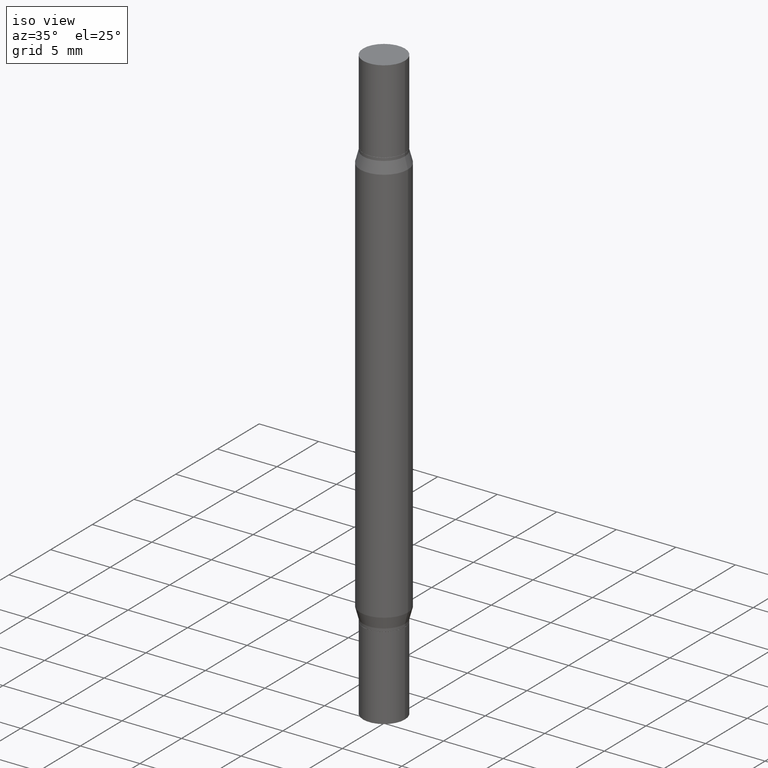
[diagram: clean part render]
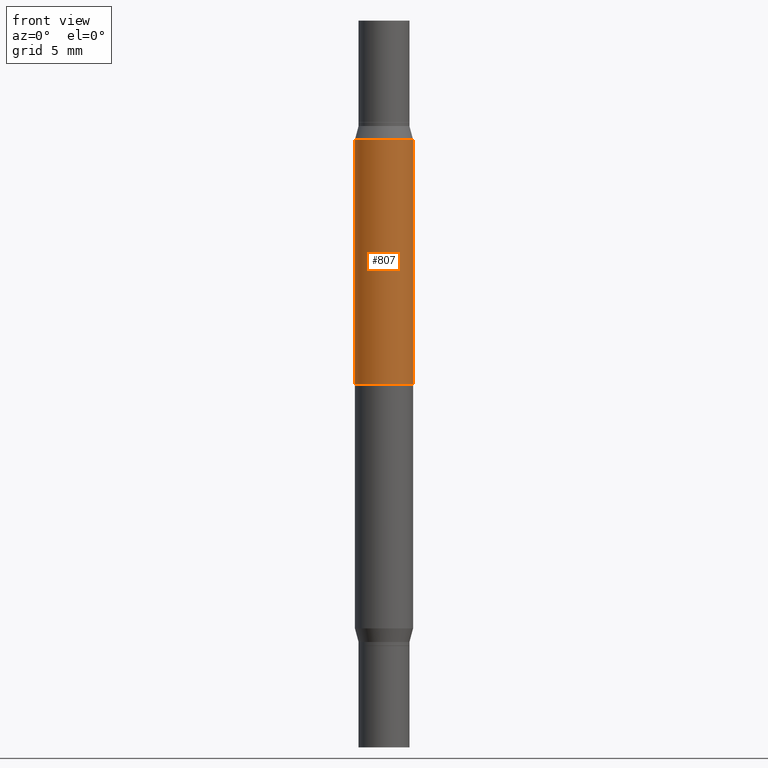
[diagram: tour spotlight — one face highlighted and labeled with its STEP entity id]
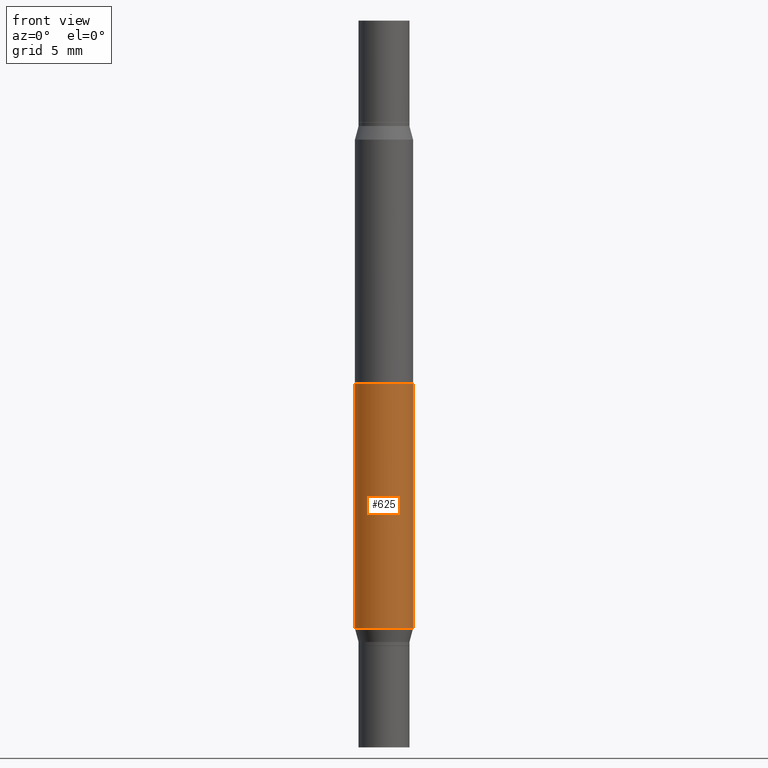
[diagram: tour spotlight — one face highlighted and labeled with its STEP entity id]
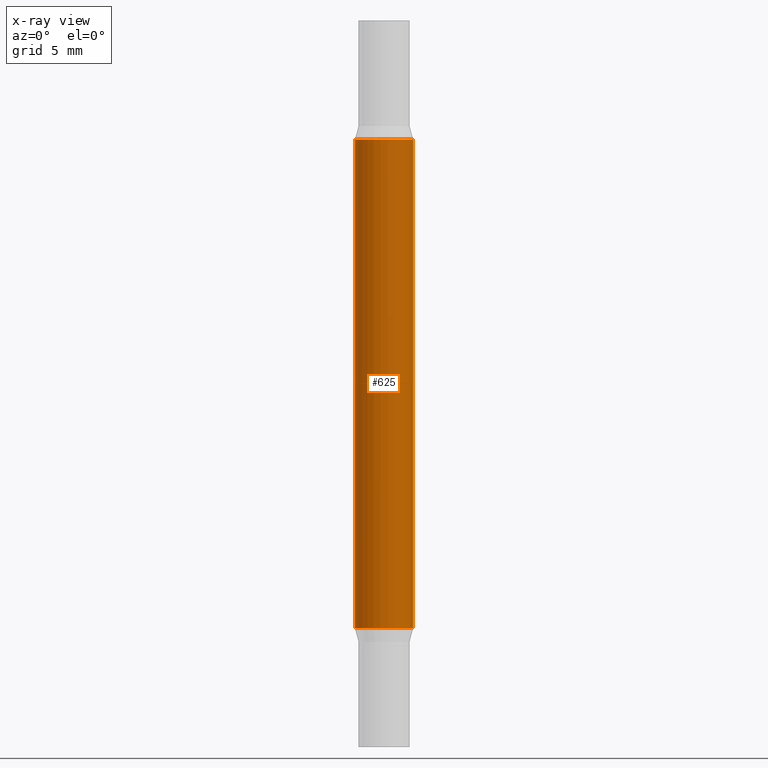
[diagram: x-ray of the same camera — body ghosted, this tour face saturated]
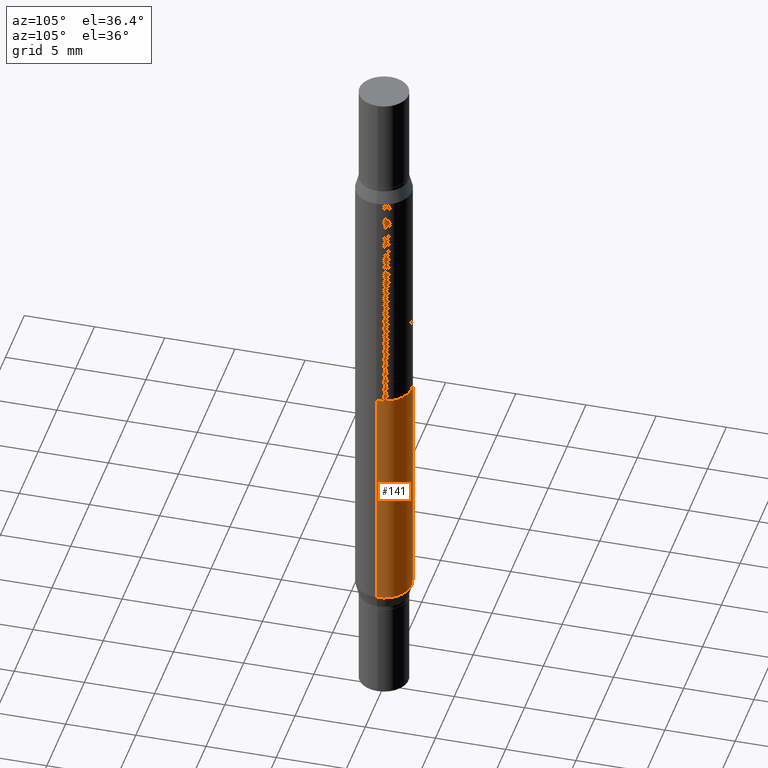
[diagram: tour spotlight — one face highlighted and labeled with its STEP entity id]
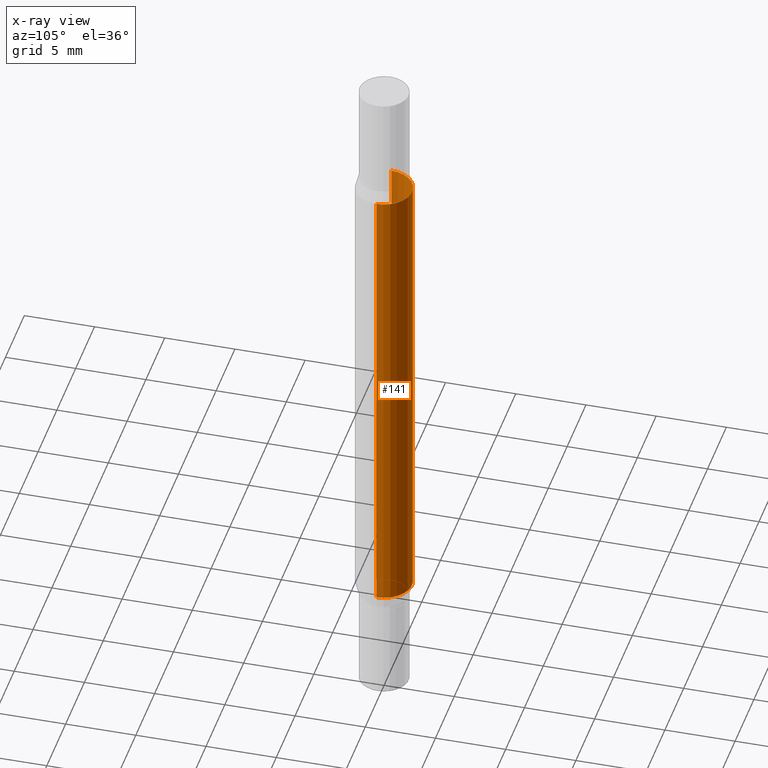
[diagram: x-ray of the same camera — body ghosted, this tour face saturated]
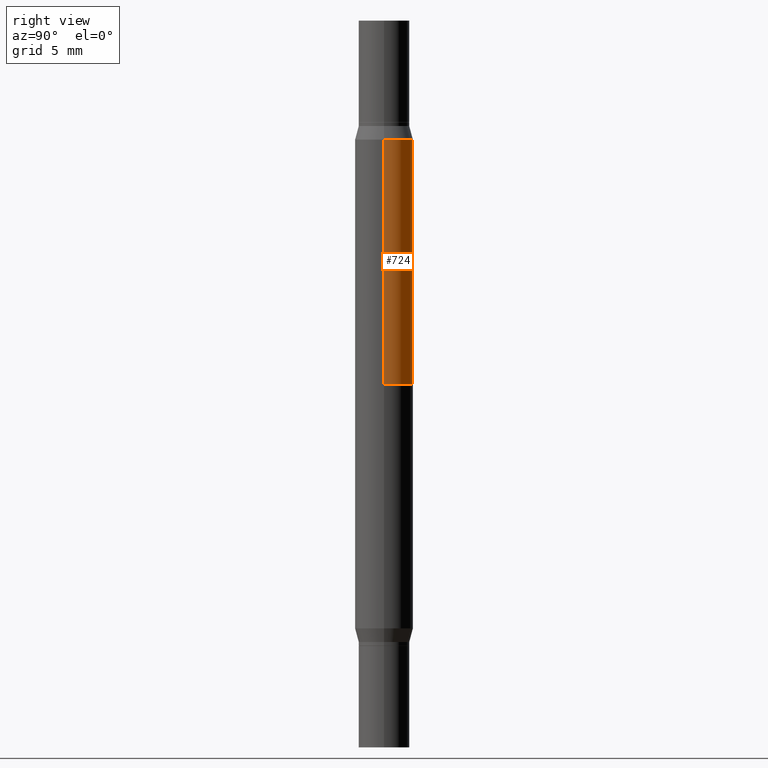
[diagram: tour spotlight — one face highlighted and labeled with its STEP entity id]
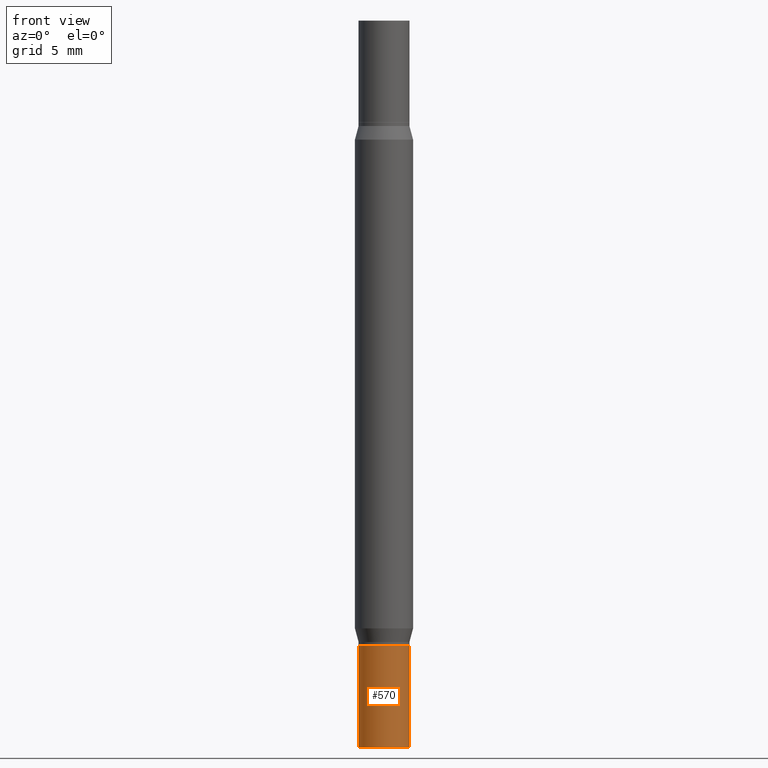
[diagram: tour spotlight — one face highlighted and labeled with its STEP entity id]
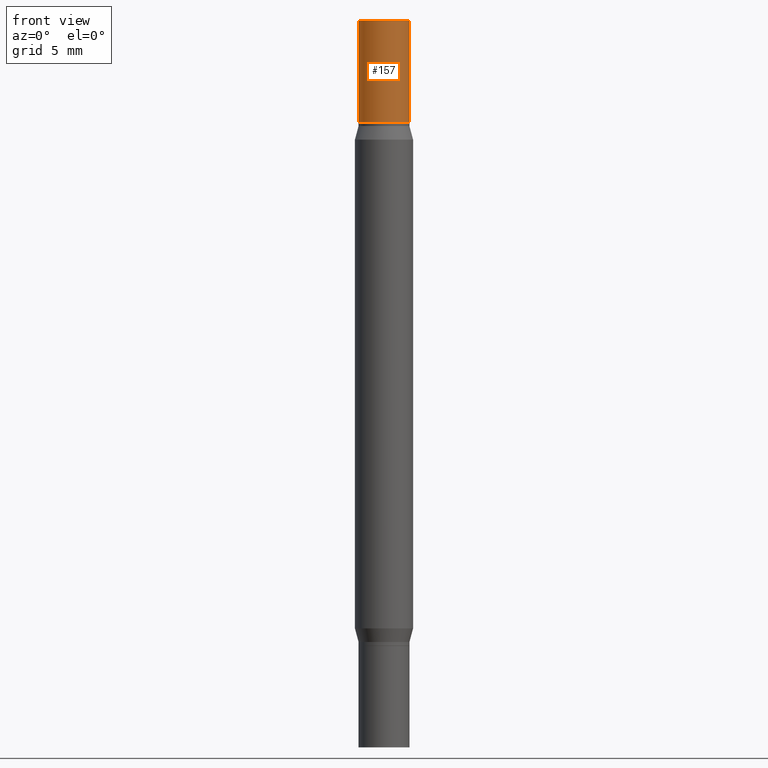
[diagram: tour spotlight — one face highlighted and labeled with its STEP entity id]
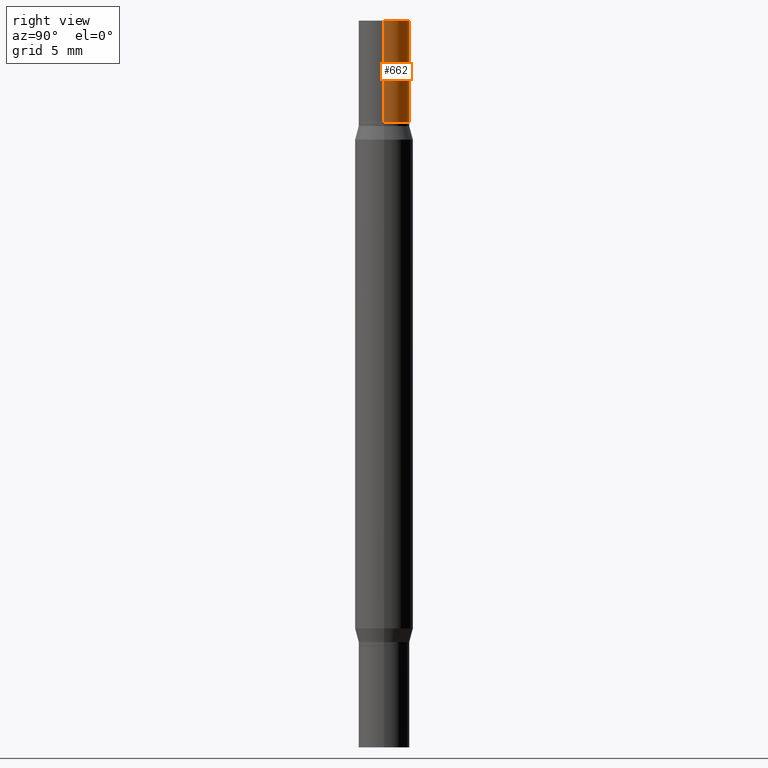
[diagram: tour spotlight — one face highlighted and labeled with its STEP entity id]
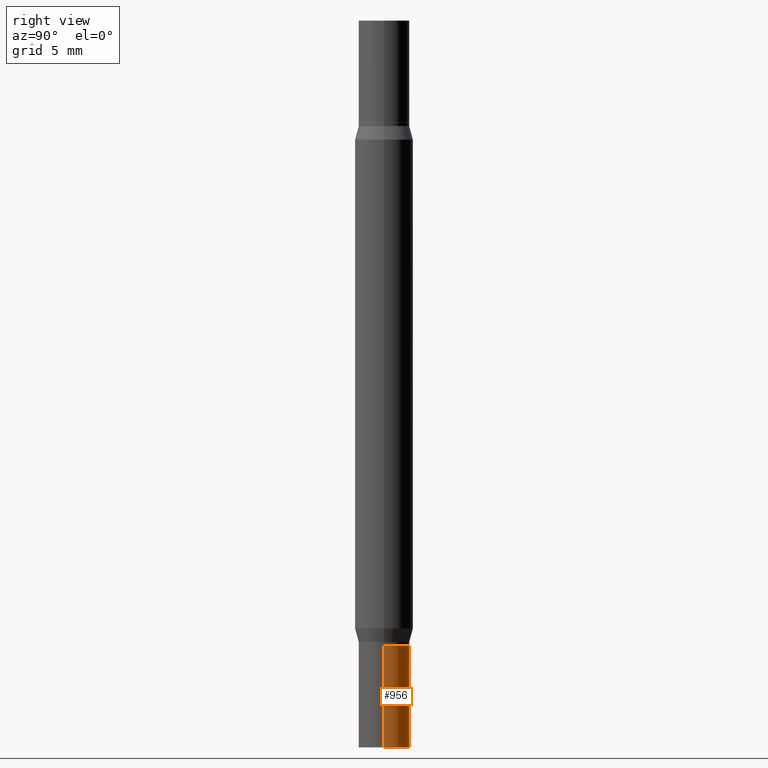
[diagram: tour spotlight — one face highlighted and labeled with its STEP entity id]
A machine part: a face-by-face anatomy tour. The part has 38 B-rep faces; the first image is the clean iso view, then the 8 largest visible faces are spotlighted one at a time (largest first), each with its STEP entity span.

Face 1 — front view, entity #807. In plain terms, the highlighted cylindrical surface (edge-blend (fillet) strip) has radius 2.0003 mm, axis along (-0, -0, -1).
Definition (entity closure, byte-faithful):
#22 = CIRCLE ( 'NONE', #407, 0.07875000000000001443 ) ;
#51 = EDGE_CURVE ( 'NONE', #605, #504, #960, .T. ) ;
#57 = CARTESIAN_POINT ( 'NONE',  ( 2.406952672487720357E-29, -3.436490507756365459E-15, -0.9842499999999998472 ) ) ;
#80 = AXIS2_PLACEMENT_3D ( 'NONE', #84, #391, #747 ) ;
#82 = EDGE_CURVE ( 'NONE', #605, #242, #558, .T. ) ;
#84 = CARTESIAN_POINT ( 'NONE',  ( 0.000000000000000000, -6.873299672471851415E-15, -1.968499999999999694 ) ) ;
#104 = CARTESIAN_POINT ( 'NONE',  ( 0.07875000000000001443, -1.675210390171119696E-15, -0.3223607004545533949 ) ) ;
#191 = DIRECTION ( 'NONE',  ( 1.000000000000000000, -6.982962677686267499E-15, 0.000000000000000000 ) ) ;
#237 = EDGE_CURVE ( 'NONE', #883, #242, #22, .T. ) ;
#240 = EDGE_CURVE ( 'NONE', #504, #883, #666, .T. ) ;
#242 = VERTEX_POINT ( 'NONE', #879 ) ;
#296 = CARTESIAN_POINT ( 'NONE',  ( -0.07875000000000001443, -5.850378619788178690E-16, -0.3223607004545533949 ) ) ;
#308 = ORIENTED_EDGE ( 'NONE', *, *, #51, .F. ) ;
#330 = ORIENTED_EDGE ( 'NONE', *, *, #237, .F. ) ;
#380 = CARTESIAN_POINT ( 'NONE',  ( 0.07875000000000001443, -7.423207983339645550E-15, -1.968499999999999694 ) ) ;
#391 = DIRECTION ( 'NONE',  ( -2.445468806185136597E-29, -3.491805094961124077E-15, -1.000000000000000000 ) ) ;
#406 = CARTESIAN_POINT ( 'NONE',  ( 4.025582307673839975E-29, -1.125302079303325561E-15, -0.3223607004545533949 ) ) ;
#407 = AXIS2_PLACEMENT_3D ( 'NONE', #57, #808, #975 ) ;
#430 = DIRECTION ( 'NONE',  ( 2.445468806185136597E-29, 3.491805094961124077E-15, 1.000000000000000000 ) ) ;
#433 = EDGE_LOOP ( 'NONE', ( #308, #767, #330, #871 ) ) ;
#446 = VECTOR ( 'NONE', #661, 39.37007874015748143 ) ;
#504 = VERTEX_POINT ( 'NONE', #104 ) ;
#519 = VECTOR ( 'NONE', #779, 39.37007874015748143 ) ;
#532 = AXIS2_PLACEMENT_3D ( 'NONE', #406, #430, #191 ) ;
#544 = CARTESIAN_POINT ( 'NONE',  ( 0.07875000000000001443, -2.830804604397638560E-15, -0.9842499999999998472 ) ) ;
#558 = LINE ( 'NONE', #864, #519 ) ;
#602 = CYLINDRICAL_SURFACE ( 'NONE', #80, 0.07875000000000001443 ) ;
#605 = VERTEX_POINT ( 'NONE', #296 ) ;
#661 = DIRECTION ( 'NONE',  ( -2.445468806185136877E-29, -3.491805094961123683E-15, -1.000000000000000000 ) ) ;
#666 = LINE ( 'NONE', #380, #446 ) ;
#747 = DIRECTION ( 'NONE',  ( 1.000000000000000000, -6.982962677686273810E-15, 0.000000000000000000 ) ) ;
#767 = ORIENTED_EDGE ( 'NONE', *, *, #82, .T. ) ;
#779 = DIRECTION ( 'NONE',  ( -2.445468806185136877E-29, -3.491805094961123683E-15, -1.000000000000000000 ) ) ;
#807 = ADVANCED_FACE ( 'NONE', ( #901 ), #602, .T. ) ;
#808 = DIRECTION ( 'NONE',  ( -0.000000000000000000, -3.491643216902134830E-15, -1.000000000000000000 ) ) ;
#864 = CARTESIAN_POINT ( 'NONE',  ( -0.07875000000000001443, -6.333035455147343525E-15, -1.968499999999999694 ) ) ;
#871 = ORIENTED_EDGE ( 'NONE', *, *, #240, .F. ) ;
#879 = CARTESIAN_POINT ( 'NONE',  ( -0.07875000000000001443, -1.740632076205336930E-15, -0.9842499999999998472 ) ) ;
#883 = VERTEX_POINT ( 'NONE', #544 ) ;
#901 = FACE_OUTER_BOUND ( 'NONE', #433, .T. ) ;
#960 = CIRCLE ( 'NONE', #532, 0.07875000000000001443 ) ;
#975 = DIRECTION ( 'NONE',  ( 0.000000000000000000, 1.000000000000000000, -3.469013325287952504E-15 ) ) ;

Face 2 — front view, entity #625. An x-ray twin of the same camera follows (body ghosted, this face saturated) — the face is partly hidden behind the body. In plain terms, the highlighted cylindrical surface (edge-blend (fillet) strip) has radius 2.0003 mm, axis along (-0, -0, -1).
Definition (entity closure, byte-faithful):
#7 = CARTESIAN_POINT ( 'NONE',  ( 0.07875000000000001443, -6.297372956367045729E-15, -1.646139299545446466 ) ) ;
#14 = ORIENTED_EDGE ( 'NONE', *, *, #546, .T. ) ;
#24 = VECTOR ( 'NONE', #685, 39.37007874015748143 ) ;
#29 = VERTEX_POINT ( 'NONE', #955 ) ;
#34 = ORIENTED_EDGE ( 'NONE', *, *, #401, .F. ) ;
#42 = DIRECTION ( 'NONE',  ( 1.000000000000000000, -6.982962677686261189E-15, 0.000000000000000000 ) ) ;
#74 = LINE ( 'NONE', #877, #926 ) ;
#143 = DIRECTION ( 'NONE',  ( -2.445468806185136597E-29, -3.491805094961124077E-15, -1.000000000000000000 ) ) ;
#154 = DIRECTION ( 'NONE',  ( 2.445468806185136597E-29, 3.491805094961124077E-15, 1.000000000000000000 ) ) ;
#172 = LINE ( 'NONE', #387, #24 ) ;
#189 = AXIS2_PLACEMENT_3D ( 'NONE', #696, #492, #42 ) ;
#211 = DIRECTION ( 'NONE',  ( 1.000000000000000000, -6.982962677686267499E-15, 0.000000000000000000 ) ) ;
#233 = CIRCLE ( 'NONE', #189, 0.07875000000000001443 ) ;
#267 = VERTEX_POINT ( 'NONE', #959 ) ;
#352 = CIRCLE ( 'NONE', #521, 0.07875000000000001443 ) ;
#370 = CARTESIAN_POINT ( 'NONE',  ( 0.000000000000000000, -6.873299672471851415E-15, -1.968499999999999694 ) ) ;
#373 = FACE_OUTER_BOUND ( 'NONE', #472, .T. ) ;
#387 = CARTESIAN_POINT ( 'NONE',  ( 0.07875000000000001443, -7.423207983339645550E-15, -1.968499999999999694 ) ) ;
#390 = VERTEX_POINT ( 'NONE', #7 ) ;
#401 = EDGE_CURVE ( 'NONE', #29, #390, #172, .T. ) ;
#451 = CYLINDRICAL_SURFACE ( 'NONE', #464, 0.07875000000000001443 ) ;
#464 = AXIS2_PLACEMENT_3D ( 'NONE', #370, #143, #743 ) ;
#472 = EDGE_LOOP ( 'NONE', ( #571, #727, #14, #34 ) ) ;
#492 = DIRECTION ( 'NONE',  ( -2.445468806185136597E-29, 3.491481338843145583E-15, 1.000000000000000000 ) ) ;
#521 = AXIS2_PLACEMENT_3D ( 'NONE', #818, #154, #211 ) ;
#546 = EDGE_CURVE ( 'NONE', #937, #390, #233, .T. ) ;
#571 = ORIENTED_EDGE ( 'NONE', *, *, #721, .F. ) ;
#625 = ADVANCED_FACE ( 'NONE', ( #373 ), #451, .T. ) ;
#643 = EDGE_CURVE ( 'NONE', #267, #937, #74, .T. ) ;
#646 = DIRECTION ( 'NONE',  ( -2.445468806185136877E-29, -3.491805094961123683E-15, -1.000000000000000000 ) ) ;
#685 = DIRECTION ( 'NONE',  ( -2.445468806185136877E-29, -3.491805094961123683E-15, -1.000000000000000000 ) ) ;
#696 = CARTESIAN_POINT ( 'NONE',  ( 4.025582307673839975E-29, -5.747464645499252384E-15, -1.646139299545446466 ) ) ;
#721 = EDGE_CURVE ( 'NONE', #267, #29, #352, .T. ) ;
#727 = ORIENTED_EDGE ( 'NONE', *, *, #643, .T. ) ;
#743 = DIRECTION ( 'NONE',  ( 1.000000000000000000, -6.982962677686273810E-15, 0.000000000000000000 ) ) ;
#753 = CARTESIAN_POINT ( 'NONE',  ( -0.07875000000000001443, -2.896226290431857964E-15, -1.646139299545446466 ) ) ;
#818 = CARTESIAN_POINT ( 'NONE',  ( 4.025582307673839975E-29, -1.125302079303325561E-15, -0.3223607004545533949 ) ) ;
#877 = CARTESIAN_POINT ( 'NONE',  ( -0.07875000000000001443, -6.333035455147343525E-15, -1.968499999999999694 ) ) ;
#926 = VECTOR ( 'NONE', #646, 39.37007874015748143 ) ;
#937 = VERTEX_POINT ( 'NONE', #753 ) ;
#955 = CARTESIAN_POINT ( 'NONE',  ( 0.07875000000000001443, -1.675210390171119696E-15, -0.3223607004545533949 ) ) ;
#959 = CARTESIAN_POINT ( 'NONE',  ( -0.07875000000000001443, -5.850378619788178690E-16, -0.3223607004545533949 ) ) ;

Face 3 — auxiliary view, entity #141. An x-ray twin of the same camera follows (body ghosted, this face saturated) — the face is partly hidden behind the body. In plain terms, the highlighted cylindrical surface (edge-blend (fillet) strip) has radius 2.0003 mm, axis along (-0, -0, -1).
Definition (entity closure, byte-faithful):
#7 = CARTESIAN_POINT ( 'NONE',  ( 0.07875000000000001443, -6.297372956367045729E-15, -1.646139299545446466 ) ) ;
#24 = VECTOR ( 'NONE', #685, 39.37007874015748143 ) ;
#29 = VERTEX_POINT ( 'NONE', #955 ) ;
#74 = LINE ( 'NONE', #877, #926 ) ;
#133 = DIRECTION ( 'NONE',  ( 1.000000000000000000, -6.982962677686273810E-15, 0.000000000000000000 ) ) ;
#141 = ADVANCED_FACE ( 'NONE', ( #784 ), #193, .T. ) ;
#170 = CARTESIAN_POINT ( 'NONE',  ( 4.025582307673839975E-29, -5.747464645499252384E-15, -1.646139299545446466 ) ) ;
#172 = LINE ( 'NONE', #387, #24 ) ;
#186 = AXIS2_PLACEMENT_3D ( 'NONE', #970, #601, #133 ) ;
#193 = CYLINDRICAL_SURFACE ( 'NONE', #186, 0.07875000000000001443 ) ;
#232 = AXIS2_PLACEMENT_3D ( 'NONE', #170, #247, #617 ) ;
#247 = DIRECTION ( 'NONE',  ( -2.445468806185136597E-29, 3.491481338843145583E-15, 1.000000000000000000 ) ) ;
#255 = EDGE_CURVE ( 'NONE', #29, #267, #760, .T. ) ;
#267 = VERTEX_POINT ( 'NONE', #959 ) ;
#282 = ORIENTED_EDGE ( 'NONE', *, *, #255, .F. ) ;
#285 = ORIENTED_EDGE ( 'NONE', *, *, #319, .T. ) ;
#303 = DIRECTION ( 'NONE',  ( 2.445468806185136597E-29, 3.491805094961124077E-15, 1.000000000000000000 ) ) ;
#319 = EDGE_CURVE ( 'NONE', #390, #937, #333, .T. ) ;
#333 = CIRCLE ( 'NONE', #232, 0.07875000000000001443 ) ;
#387 = CARTESIAN_POINT ( 'NONE',  ( 0.07875000000000001443, -7.423207983339645550E-15, -1.968499999999999694 ) ) ;
#390 = VERTEX_POINT ( 'NONE', #7 ) ;
#401 = EDGE_CURVE ( 'NONE', #29, #390, #172, .T. ) ;
#453 = CARTESIAN_POINT ( 'NONE',  ( 4.025582307673839975E-29, -1.125302079303325561E-15, -0.3223607004545533949 ) ) ;
#489 = AXIS2_PLACEMENT_3D ( 'NONE', #453, #303, #902 ) ;
#567 = ORIENTED_EDGE ( 'NONE', *, *, #401, .T. ) ;
#601 = DIRECTION ( 'NONE',  ( -2.445468806185136597E-29, -3.491805094961124077E-15, -1.000000000000000000 ) ) ;
#617 = DIRECTION ( 'NONE',  ( 1.000000000000000000, -6.982962677686261189E-15, 0.000000000000000000 ) ) ;
#643 = EDGE_CURVE ( 'NONE', #267, #937, #74, .T. ) ;
#646 = DIRECTION ( 'NONE',  ( -2.445468806185136877E-29, -3.491805094961123683E-15, -1.000000000000000000 ) ) ;
#685 = DIRECTION ( 'NONE',  ( -2.445468806185136877E-29, -3.491805094961123683E-15, -1.000000000000000000 ) ) ;
#753 = CARTESIAN_POINT ( 'NONE',  ( -0.07875000000000001443, -2.896226290431857964E-15, -1.646139299545446466 ) ) ;
#760 = CIRCLE ( 'NONE', #489, 0.07875000000000001443 ) ;
#784 = FACE_OUTER_BOUND ( 'NONE', #816, .T. ) ;
#816 = EDGE_LOOP ( 'NONE', ( #820, #282, #567, #285 ) ) ;
#820 = ORIENTED_EDGE ( 'NONE', *, *, #643, .F. ) ;
#877 = CARTESIAN_POINT ( 'NONE',  ( -0.07875000000000001443, -6.333035455147343525E-15, -1.968499999999999694 ) ) ;
#902 = DIRECTION ( 'NONE',  ( 1.000000000000000000, -6.982962677686267499E-15, 0.000000000000000000 ) ) ;
#926 = VECTOR ( 'NONE', #646, 39.37007874015748143 ) ;
#937 = VERTEX_POINT ( 'NONE', #753 ) ;
#955 = CARTESIAN_POINT ( 'NONE',  ( 0.07875000000000001443, -1.675210390171119696E-15, -0.3223607004545533949 ) ) ;
#959 = CARTESIAN_POINT ( 'NONE',  ( -0.07875000000000001443, -5.850378619788178690E-16, -0.3223607004545533949 ) ) ;
#970 = CARTESIAN_POINT ( 'NONE',  ( 0.000000000000000000, -6.873299672471851415E-15, -1.968499999999999694 ) ) ;

Face 4 — right view, entity #724. In plain terms, the highlighted cylindrical surface (edge-blend (fillet) strip) has radius 2.0003 mm, axis along (-0, -0, -1).
Definition (entity closure, byte-faithful):
#82 = EDGE_CURVE ( 'NONE', #605, #242, #558, .T. ) ;
#83 = ORIENTED_EDGE ( 'NONE', *, *, #82, .F. ) ;
#104 = CARTESIAN_POINT ( 'NONE',  ( 0.07875000000000001443, -1.675210390171119696E-15, -0.3223607004545533949 ) ) ;
#118 = ORIENTED_EDGE ( 'NONE', *, *, #311, .F. ) ;
#131 = DIRECTION ( 'NONE',  ( 1.000000000000000000, -6.982962677686273810E-15, 0.000000000000000000 ) ) ;
#240 = EDGE_CURVE ( 'NONE', #504, #883, #666, .T. ) ;
#242 = VERTEX_POINT ( 'NONE', #879 ) ;
#245 = EDGE_CURVE ( 'NONE', #242, #883, #687, .T. ) ;
#296 = CARTESIAN_POINT ( 'NONE',  ( -0.07875000000000001443, -5.850378619788178690E-16, -0.3223607004545533949 ) ) ;
#299 = DIRECTION ( 'NONE',  ( 0.000000000000000000, 1.000000000000000000, -3.469013325287952504E-15 ) ) ;
#307 = AXIS2_PLACEMENT_3D ( 'NONE', #725, #577, #131 ) ;
#311 = EDGE_CURVE ( 'NONE', #504, #605, #395, .T. ) ;
#380 = CARTESIAN_POINT ( 'NONE',  ( 0.07875000000000001443, -7.423207983339645550E-15, -1.968499999999999694 ) ) ;
#382 = AXIS2_PLACEMENT_3D ( 'NONE', #400, #922, #763 ) ;
#395 = CIRCLE ( 'NONE', #382, 0.07875000000000001443 ) ;
#400 = CARTESIAN_POINT ( 'NONE',  ( 4.025582307673839975E-29, -1.125302079303325561E-15, -0.3223607004545533949 ) ) ;
#446 = VECTOR ( 'NONE', #661, 39.37007874015748143 ) ;
#504 = VERTEX_POINT ( 'NONE', #104 ) ;
#519 = VECTOR ( 'NONE', #779, 39.37007874015748143 ) ;
#535 = AXIS2_PLACEMENT_3D ( 'NONE', #797, #980, #299 ) ;
#544 = CARTESIAN_POINT ( 'NONE',  ( 0.07875000000000001443, -2.830804604397638560E-15, -0.9842499999999998472 ) ) ;
#558 = LINE ( 'NONE', #864, #519 ) ;
#573 = ORIENTED_EDGE ( 'NONE', *, *, #245, .F. ) ;
#577 = DIRECTION ( 'NONE',  ( -2.445468806185136597E-29, -3.491805094961124077E-15, -1.000000000000000000 ) ) ;
#584 = FACE_OUTER_BOUND ( 'NONE', #894, .T. ) ;
#605 = VERTEX_POINT ( 'NONE', #296 ) ;
#661 = DIRECTION ( 'NONE',  ( -2.445468806185136877E-29, -3.491805094961123683E-15, -1.000000000000000000 ) ) ;
#666 = LINE ( 'NONE', #380, #446 ) ;
#687 = CIRCLE ( 'NONE', #535, 0.07875000000000001443 ) ;
#724 = ADVANCED_FACE ( 'NONE', ( #584 ), #806, .T. ) ;
#725 = CARTESIAN_POINT ( 'NONE',  ( 0.000000000000000000, -6.873299672471851415E-15, -1.968499999999999694 ) ) ;
#763 = DIRECTION ( 'NONE',  ( 1.000000000000000000, -6.982962677686267499E-15, 0.000000000000000000 ) ) ;
#779 = DIRECTION ( 'NONE',  ( -2.445468806185136877E-29, -3.491805094961123683E-15, -1.000000000000000000 ) ) ;
#797 = CARTESIAN_POINT ( 'NONE',  ( 2.406952672487720357E-29, -3.436490507756365459E-15, -0.9842499999999998472 ) ) ;
#806 = CYLINDRICAL_SURFACE ( 'NONE', #307, 0.07875000000000001443 ) ;
#864 = CARTESIAN_POINT ( 'NONE',  ( -0.07875000000000001443, -6.333035455147343525E-15, -1.968499999999999694 ) ) ;
#879 = CARTESIAN_POINT ( 'NONE',  ( -0.07875000000000001443, -1.740632076205336930E-15, -0.9842499999999998472 ) ) ;
#880 = ORIENTED_EDGE ( 'NONE', *, *, #240, .T. ) ;
#883 = VERTEX_POINT ( 'NONE', #544 ) ;
#894 = EDGE_LOOP ( 'NONE', ( #83, #118, #880, #573 ) ) ;
#922 = DIRECTION ( 'NONE',  ( 2.445468806185136597E-29, 3.491805094961124077E-15, 1.000000000000000000 ) ) ;
#980 = DIRECTION ( 'NONE',  ( -0.000000000000000000, -3.491643216902134830E-15, -1.000000000000000000 ) ) ;

Face 5 — front view, entity #570. In plain terms, the highlighted cylindrical surface (edge-blend (fillet) strip) has radius 1.7501 mm, axis along (-0, 0, 1).
Definition (entity closure, byte-faithful):
#45 = AXIS2_PLACEMENT_3D ( 'NONE', #184, #777, #273 ) ;
#63 = CARTESIAN_POINT ( 'NONE',  ( -0.06890000000000007230, 4.895639449387095418E-16, -3.389146277185633520E-30 ) ) ;
#160 = EDGE_CURVE ( 'NONE', #362, #845, #968, .T. ) ;
#183 = ORIENTED_EDGE ( 'NONE', *, *, #701, .T. ) ;
#184 = CARTESIAN_POINT ( 'NONE',  ( 0.000000000000000000, 0.000000000000000000, 0.000000000000000000 ) ) ;
#206 = CIRCLE ( 'NONE', #941, 0.06890000000000007230 ) ;
#258 = VERTEX_POINT ( 'NONE', #652 ) ;
#273 = DIRECTION ( 'NONE',  ( 1.000000000000000000, -6.982962677686265922E-15, 4.876176775795935232E-29 ) ) ;
#287 = DIRECTION ( 'NONE',  ( -2.445468806185136877E-29, 3.491481338843145188E-15, 1.000000000000000000 ) ) ;
#290 = DIRECTION ( 'NONE',  ( -2.445468806185136877E-29, 3.491481338843145188E-15, 1.000000000000000000 ) ) ;
#302 = DIRECTION ( 'NONE',  ( -2.445468806185136597E-29, 3.491481338843145583E-15, 1.000000000000000000 ) ) ;
#350 = FACE_OUTER_BOUND ( 'NONE', #673, .T. ) ;
#362 = VERTEX_POINT ( 'NONE', #832 ) ;
#365 = CARTESIAN_POINT ( 'NONE',  ( 4.813905344975441835E-29, -6.872981015512731707E-15, -1.968500000000000139 ) ) ;
#397 = CIRCLE ( 'NONE', #638, 0.06890000000000007230 ) ;
#527 = ORIENTED_EDGE ( 'NONE', *, *, #713, .F. ) ;
#570 = ADVANCED_FACE ( 'NONE', ( #350 ), #843, .T. ) ;
#586 = CARTESIAN_POINT ( 'NONE',  ( 0.06890000000000007230, -4.811261284925842315E-16, 3.359685798523402771E-30 ) ) ;
#593 = DIRECTION ( 'NONE',  ( 1.000000000000000000, -6.982962677686258822E-15, 0.000000000000000000 ) ) ;
#618 = VECTOR ( 'NONE', #290, 39.37007874015748143 ) ;
#632 = VERTEX_POINT ( 'NONE', #795 ) ;
#638 = AXIS2_PLACEMENT_3D ( 'NONE', #365, #302, #593 ) ;
#640 = EDGE_CURVE ( 'NONE', #632, #258, #969, .T. ) ;
#652 = CARTESIAN_POINT ( 'NONE',  ( -0.06890000000000007230, -5.902290942081436849E-15, -1.692899999999999849 ) ) ;
#673 = EDGE_LOOP ( 'NONE', ( #863, #183, #693, #527 ) ) ;
#693 = ORIENTED_EDGE ( 'NONE', *, *, #160, .T. ) ;
#701 = EDGE_CURVE ( 'NONE', #632, #362, #397, .T. ) ;
#713 = EDGE_CURVE ( 'NONE', #258, #845, #206, .T. ) ;
#735 = DIRECTION ( 'NONE',  ( 1.000000000000000000, -6.982962677686258822E-15, 0.000000000000000000 ) ) ;
#777 = DIRECTION ( 'NONE',  ( -2.445468806185136597E-29, 3.491481338843145583E-15, 1.000000000000000000 ) ) ;
#795 = CARTESIAN_POINT ( 'NONE',  ( -0.06890000000000007230, -5.902290942081436849E-15, -1.968500000000000139 ) ) ;
#811 = VECTOR ( 'NONE', #287, 39.37007874015748143 ) ;
#832 = CARTESIAN_POINT ( 'NONE',  ( 0.06890000000000007230, -7.354107144005315446E-15, -1.968500000000000139 ) ) ;
#843 = CYLINDRICAL_SURFACE ( 'NONE', #45, 0.06890000000000007230 ) ;
#845 = VERTEX_POINT ( 'NONE', #918 ) ;
#863 = ORIENTED_EDGE ( 'NONE', *, *, #640, .F. ) ;
#886 = CARTESIAN_POINT ( 'NONE',  ( 4.139934141990817236E-29, -5.910728758527560286E-15, -1.692899999999999849 ) ) ;
#918 = CARTESIAN_POINT ( 'NONE',  ( 0.06890000000000007230, -6.391854887020144024E-15, -1.692899999999999849 ) ) ;
#941 = AXIS2_PLACEMENT_3D ( 'NONE', #886, #967, #735 ) ;
#967 = DIRECTION ( 'NONE',  ( -2.445468806185136597E-29, 3.491481338843145583E-15, 1.000000000000000000 ) ) ;
#968 = LINE ( 'NONE', #586, #618 ) ;
#969 = LINE ( 'NONE', #63, #811 ) ;

Face 6 — front view, entity #157. In plain terms, the highlighted cylindrical surface (edge-blend (fillet) strip) has radius 1.7501 mm, axis along (-0, -0, -1).
Definition (entity closure, byte-faithful):
#59 = CARTESIAN_POINT ( 'NONE',  ( 0.06890000000000007230, -7.354425800964435942E-15, -1.968499999999999694 ) ) ;
#87 = LINE ( 'NONE', #534, #773 ) ;
#157 = ADVANCED_FACE ( 'NONE', ( #297 ), #216, .T. ) ;
#178 = DIRECTION ( 'NONE',  ( -2.445468806185136877E-29, -3.491805094961123683E-15, -1.000000000000000000 ) ) ;
#212 = LINE ( 'NONE', #59, #732 ) ;
#216 = CYLINDRICAL_SURFACE ( 'NONE', #220, 0.06890000000000007230 ) ;
#220 = AXIS2_PLACEMENT_3D ( 'NONE', #224, #802, #436 ) ;
#222 = VERTEX_POINT ( 'NONE', #744 ) ;
#224 = CARTESIAN_POINT ( 'NONE',  ( 0.000000000000000000, -6.873299672471851415E-15, -1.968499999999999694 ) ) ;
#225 = EDGE_CURVE ( 'NONE', #222, #697, #212, .T. ) ;
#231 = CARTESIAN_POINT ( 'NONE',  ( 4.813905344975441835E-29, 3.186569591213228268E-19, 2.731847993664263218E-16 ) ) ;
#270 = CIRCLE ( 'NONE', #916, 0.06890000000000007230 ) ;
#275 = VERTEX_POINT ( 'NONE', #595 ) ;
#297 = FACE_OUTER_BOUND ( 'NONE', #459, .T. ) ;
#314 = DIRECTION ( 'NONE',  ( 1.000000000000000000, -6.982962677686265922E-15, 0.000000000000000000 ) ) ;
#329 = EDGE_CURVE ( 'NONE', #275, #524, #87, .T. ) ;
#360 = CARTESIAN_POINT ( 'NONE',  ( 4.139934141990817236E-29, -9.620228272121656440E-16, -0.2755999999999999006 ) ) ;
#381 = EDGE_CURVE ( 'NONE', #275, #222, #893, .T. ) ;
#436 = DIRECTION ( 'NONE',  ( 1.000000000000000000, -6.982962677686258822E-15, 0.000000000000000000 ) ) ;
#445 = CARTESIAN_POINT ( 'NONE',  ( 0.06890000000000007230, -1.443148955704749777E-15, -0.2755999999999999006 ) ) ;
#457 = DIRECTION ( 'NONE',  ( 2.445468806185136597E-29, 3.491805094961124077E-15, 1.000000000000000000 ) ) ;
#459 = EDGE_LOOP ( 'NONE', ( #507, #958, #809, #629 ) ) ;
#507 = ORIENTED_EDGE ( 'NONE', *, *, #381, .F. ) ;
#524 = VERTEX_POINT ( 'NONE', #945 ) ;
#534 = CARTESIAN_POINT ( 'NONE',  ( -0.06890000000000007230, -6.400611360425392691E-15, -1.968499999999999694 ) ) ;
#595 = CARTESIAN_POINT ( 'NONE',  ( -0.06890000000000007230, -8.163773080062677072E-18, 2.731847993664279982E-16 ) ) ;
#629 = ORIENTED_EDGE ( 'NONE', *, *, #225, .F. ) ;
#674 = DIRECTION ( 'NONE',  ( -2.445468806185136877E-29, -3.491805094961123683E-15, -1.000000000000000000 ) ) ;
#682 = DIRECTION ( 'NONE',  ( 2.445468806185136597E-29, 3.491805094961124077E-15, 1.000000000000000000 ) ) ;
#697 = VERTEX_POINT ( 'NONE', #445 ) ;
#702 = AXIS2_PLACEMENT_3D ( 'NONE', #231, #682, #314 ) ;
#732 = VECTOR ( 'NONE', #674, 39.37007874015748143 ) ;
#744 = CARTESIAN_POINT ( 'NONE',  ( 0.06890000000000007230, -4.808074715334629460E-16, 2.731847993664263218E-16 ) ) ;
#752 = EDGE_CURVE ( 'NONE', #524, #697, #270, .T. ) ;
#773 = VECTOR ( 'NONE', #178, 39.37007874015748143 ) ;
#802 = DIRECTION ( 'NONE',  ( -2.445468806185136597E-29, -3.491805094961124077E-15, -1.000000000000000000 ) ) ;
#809 = ORIENTED_EDGE ( 'NONE', *, *, #752, .T. ) ;
#867 = DIRECTION ( 'NONE',  ( 1.000000000000000000, -6.982962677686265922E-15, 0.000000000000000000 ) ) ;
#893 = CIRCLE ( 'NONE', #702, 0.06890000000000007230 ) ;
#916 = AXIS2_PLACEMENT_3D ( 'NONE', #360, #457, #867 ) ;
#945 = CARTESIAN_POINT ( 'NONE',  ( -0.06890000000000007230, -8.163773080062737161E-18, -0.2755999999999999006 ) ) ;
#958 = ORIENTED_EDGE ( 'NONE', *, *, #329, .T. ) ;

Face 7 — right view, entity #662. In plain terms, the highlighted cylindrical surface (edge-blend (fillet) strip) has radius 1.7501 mm, axis along (-0, -0, -1).
Definition (entity closure, byte-faithful):
#59 = CARTESIAN_POINT ( 'NONE',  ( 0.06890000000000007230, -7.354425800964435942E-15, -1.968499999999999694 ) ) ;
#87 = LINE ( 'NONE', #534, #773 ) ;
#155 = DIRECTION ( 'NONE',  ( 1.000000000000000000, -6.982962677686265922E-15, 0.000000000000000000 ) ) ;
#173 = EDGE_CURVE ( 'NONE', #697, #524, #892, .T. ) ;
#178 = DIRECTION ( 'NONE',  ( -2.445468806185136877E-29, -3.491805094961123683E-15, -1.000000000000000000 ) ) ;
#194 = EDGE_CURVE ( 'NONE', #222, #275, #962, .T. ) ;
#212 = LINE ( 'NONE', #59, #732 ) ;
#218 = CARTESIAN_POINT ( 'NONE',  ( 0.000000000000000000, -6.873299672471851415E-15, -1.968499999999999694 ) ) ;
#219 = DIRECTION ( 'NONE',  ( 1.000000000000000000, -6.982962677686265922E-15, 0.000000000000000000 ) ) ;
#222 = VERTEX_POINT ( 'NONE', #744 ) ;
#225 = EDGE_CURVE ( 'NONE', #222, #697, #212, .T. ) ;
#275 = VERTEX_POINT ( 'NONE', #595 ) ;
#329 = EDGE_CURVE ( 'NONE', #275, #524, #87, .T. ) ;
#423 = EDGE_LOOP ( 'NONE', ( #642, #869, #952, #954 ) ) ;
#445 = CARTESIAN_POINT ( 'NONE',  ( 0.06890000000000007230, -1.443148955704749777E-15, -0.2755999999999999006 ) ) ;
#476 = AXIS2_PLACEMENT_3D ( 'NONE', #515, #511, #219 ) ;
#511 = DIRECTION ( 'NONE',  ( 2.445468806185136597E-29, 3.491805094961124077E-15, 1.000000000000000000 ) ) ;
#515 = CARTESIAN_POINT ( 'NONE',  ( 4.139934141990817236E-29, -9.620228272121656440E-16, -0.2755999999999999006 ) ) ;
#524 = VERTEX_POINT ( 'NONE', #945 ) ;
#525 = CYLINDRICAL_SURFACE ( 'NONE', #560, 0.06890000000000007230 ) ;
#534 = CARTESIAN_POINT ( 'NONE',  ( -0.06890000000000007230, -6.400611360425392691E-15, -1.968499999999999694 ) ) ;
#560 = AXIS2_PLACEMENT_3D ( 'NONE', #218, #882, #895 ) ;
#595 = CARTESIAN_POINT ( 'NONE',  ( -0.06890000000000007230, -8.163773080062677072E-18, 2.731847993664279982E-16 ) ) ;
#619 = AXIS2_PLACEMENT_3D ( 'NONE', #884, #731, #155 ) ;
#642 = ORIENTED_EDGE ( 'NONE', *, *, #329, .F. ) ;
#662 = ADVANCED_FACE ( 'NONE', ( #665 ), #525, .T. ) ;
#665 = FACE_OUTER_BOUND ( 'NONE', #423, .T. ) ;
#674 = DIRECTION ( 'NONE',  ( -2.445468806185136877E-29, -3.491805094961123683E-15, -1.000000000000000000 ) ) ;
#697 = VERTEX_POINT ( 'NONE', #445 ) ;
#731 = DIRECTION ( 'NONE',  ( 2.445468806185136597E-29, 3.491805094961124077E-15, 1.000000000000000000 ) ) ;
#732 = VECTOR ( 'NONE', #674, 39.37007874015748143 ) ;
#744 = CARTESIAN_POINT ( 'NONE',  ( 0.06890000000000007230, -4.808074715334629460E-16, 2.731847993664263218E-16 ) ) ;
#773 = VECTOR ( 'NONE', #178, 39.37007874015748143 ) ;
#869 = ORIENTED_EDGE ( 'NONE', *, *, #194, .F. ) ;
#882 = DIRECTION ( 'NONE',  ( -2.445468806185136597E-29, -3.491805094961124077E-15, -1.000000000000000000 ) ) ;
#884 = CARTESIAN_POINT ( 'NONE',  ( 4.813905344975441835E-29, 3.186569591213228268E-19, 2.731847993664263218E-16 ) ) ;
#892 = CIRCLE ( 'NONE', #476, 0.06890000000000007230 ) ;
#895 = DIRECTION ( 'NONE',  ( 1.000000000000000000, -6.982962677686258822E-15, 0.000000000000000000 ) ) ;
#945 = CARTESIAN_POINT ( 'NONE',  ( -0.06890000000000007230, -8.163773080062737161E-18, -0.2755999999999999006 ) ) ;
#952 = ORIENTED_EDGE ( 'NONE', *, *, #225, .T. ) ;
#954 = ORIENTED_EDGE ( 'NONE', *, *, #173, .T. ) ;
#962 = CIRCLE ( 'NONE', #619, 0.06890000000000007230 ) ;

Face 8 — right view, entity #956. In plain terms, the highlighted cylindrical surface (edge-blend (fillet) strip) has radius 1.7501 mm, axis along (-0, 0, 1).
Definition (entity closure, byte-faithful):
#21 = ORIENTED_EDGE ( 'NONE', *, *, #416, .T. ) ;
#61 = AXIS2_PLACEMENT_3D ( 'NONE', #755, #394, #838 ) ;
#63 = CARTESIAN_POINT ( 'NONE',  ( -0.06890000000000007230, 4.895639449387095418E-16, -3.389146277185633520E-30 ) ) ;
#102 = ORIENTED_EDGE ( 'NONE', *, *, #488, .F. ) ;
#160 = EDGE_CURVE ( 'NONE', #362, #845, #968, .T. ) ;
#198 = DIRECTION ( 'NONE',  ( 1.000000000000000000, -6.982962677686258822E-15, 0.000000000000000000 ) ) ;
#258 = VERTEX_POINT ( 'NONE', #652 ) ;
#287 = DIRECTION ( 'NONE',  ( -2.445468806185136877E-29, 3.491481338843145188E-15, 1.000000000000000000 ) ) ;
#290 = DIRECTION ( 'NONE',  ( -2.445468806185136877E-29, 3.491481338843145188E-15, 1.000000000000000000 ) ) ;
#359 = DIRECTION ( 'NONE',  ( 1.000000000000000000, -6.982962677686265922E-15, 4.876176775795935232E-29 ) ) ;
#362 = VERTEX_POINT ( 'NONE', #832 ) ;
#394 = DIRECTION ( 'NONE',  ( -2.445468806185136597E-29, 3.491481338843145583E-15, 1.000000000000000000 ) ) ;
#416 = EDGE_CURVE ( 'NONE', #362, #632, #914, .T. ) ;
#419 = CARTESIAN_POINT ( 'NONE',  ( 0.000000000000000000, 0.000000000000000000, 0.000000000000000000 ) ) ;
#469 = EDGE_LOOP ( 'NONE', ( #21, #599, #102, #500 ) ) ;
#488 = EDGE_CURVE ( 'NONE', #845, #258, #828, .T. ) ;
#500 = ORIENTED_EDGE ( 'NONE', *, *, #160, .F. ) ;
#556 = DIRECTION ( 'NONE',  ( -2.445468806185136597E-29, 3.491481338843145583E-15, 1.000000000000000000 ) ) ;
#564 = CYLINDRICAL_SURFACE ( 'NONE', #736, 0.06890000000000007230 ) ;
#586 = CARTESIAN_POINT ( 'NONE',  ( 0.06890000000000007230, -4.811261284925842315E-16, 3.359685798523402771E-30 ) ) ;
#599 = ORIENTED_EDGE ( 'NONE', *, *, #640, .T. ) ;
#614 = FACE_OUTER_BOUND ( 'NONE', #469, .T. ) ;
#618 = VECTOR ( 'NONE', #290, 39.37007874015748143 ) ;
#632 = VERTEX_POINT ( 'NONE', #795 ) ;
#640 = EDGE_CURVE ( 'NONE', #632, #258, #969, .T. ) ;
#652 = CARTESIAN_POINT ( 'NONE',  ( -0.06890000000000007230, -5.902290942081436849E-15, -1.692899999999999849 ) ) ;
#714 = CARTESIAN_POINT ( 'NONE',  ( 4.139934141990817236E-29, -5.910728758527560286E-15, -1.692899999999999849 ) ) ;
#719 = AXIS2_PLACEMENT_3D ( 'NONE', #714, #556, #198 ) ;
#736 = AXIS2_PLACEMENT_3D ( 'NONE', #419, #841, #359 ) ;
#755 = CARTESIAN_POINT ( 'NONE',  ( 4.813905344975441835E-29, -6.872981015512731707E-15, -1.968500000000000139 ) ) ;
#795 = CARTESIAN_POINT ( 'NONE',  ( -0.06890000000000007230, -5.902290942081436849E-15, -1.968500000000000139 ) ) ;
#811 = VECTOR ( 'NONE', #287, 39.37007874015748143 ) ;
#828 = CIRCLE ( 'NONE', #719, 0.06890000000000007230 ) ;
#832 = CARTESIAN_POINT ( 'NONE',  ( 0.06890000000000007230, -7.354107144005315446E-15, -1.968500000000000139 ) ) ;
#838 = DIRECTION ( 'NONE',  ( 1.000000000000000000, -6.982962677686258822E-15, 0.000000000000000000 ) ) ;
#841 = DIRECTION ( 'NONE',  ( -2.445468806185136597E-29, 3.491481338843145583E-15, 1.000000000000000000 ) ) ;
#845 = VERTEX_POINT ( 'NONE', #918 ) ;
#914 = CIRCLE ( 'NONE', #61, 0.06890000000000007230 ) ;
#918 = CARTESIAN_POINT ( 'NONE',  ( 0.06890000000000007230, -6.391854887020144024E-15, -1.692899999999999849 ) ) ;
#956 = ADVANCED_FACE ( 'NONE', ( #614 ), #564, .T. ) ;
#968 = LINE ( 'NONE', #586, #618 ) ;
#969 = LINE ( 'NONE', #63, #811 ) ;